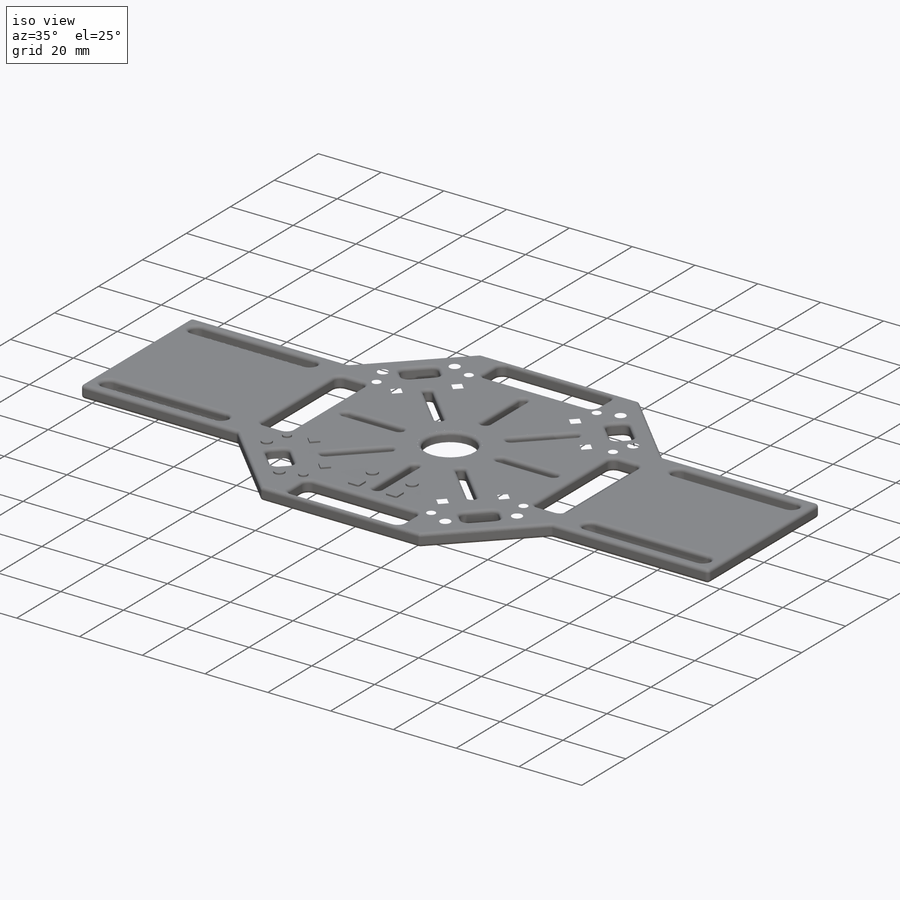
[diagram: iso view]
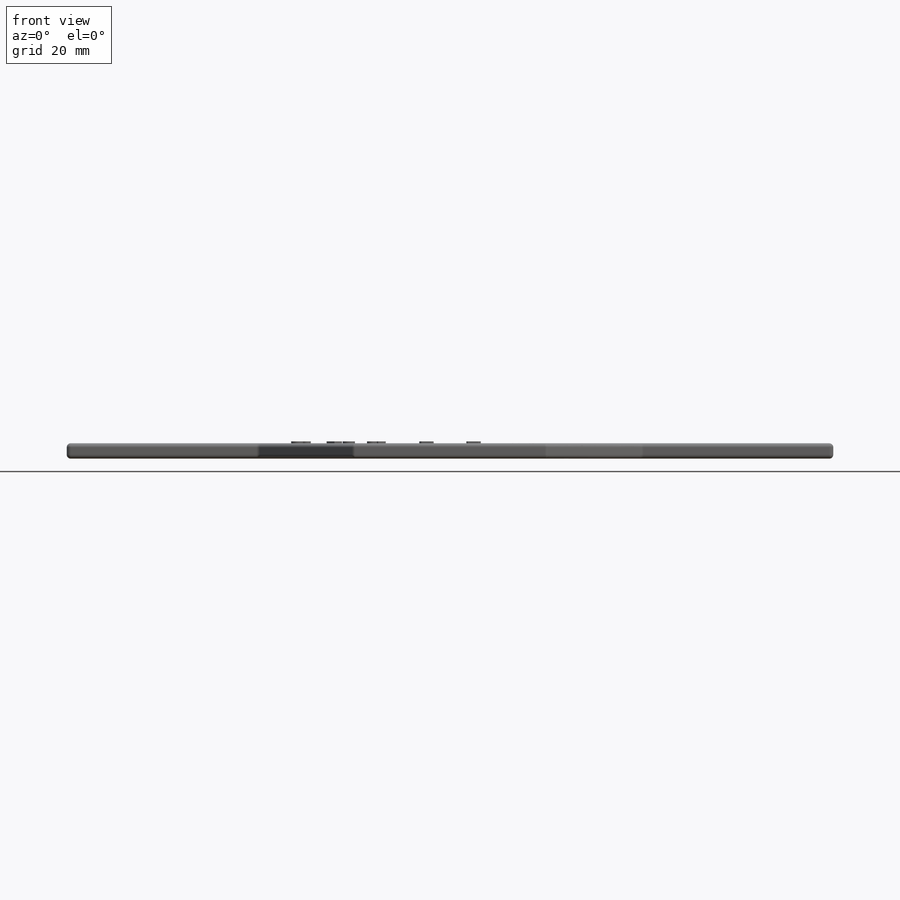
[diagram: front view]
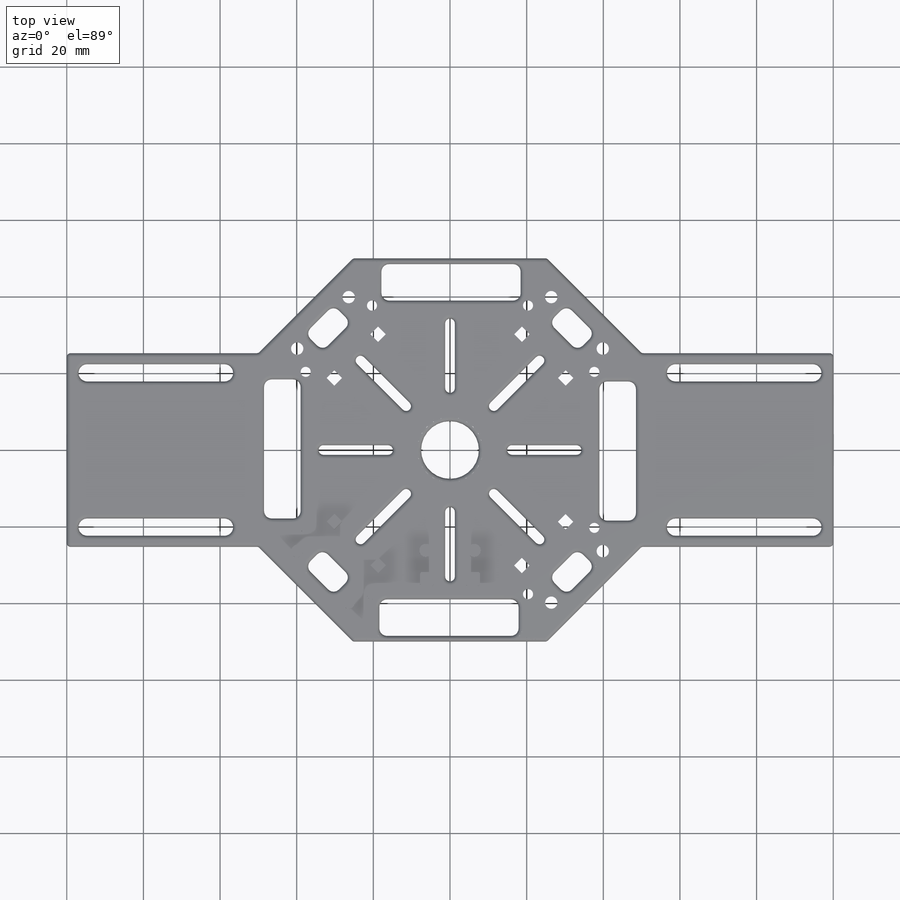
[diagram: top view]
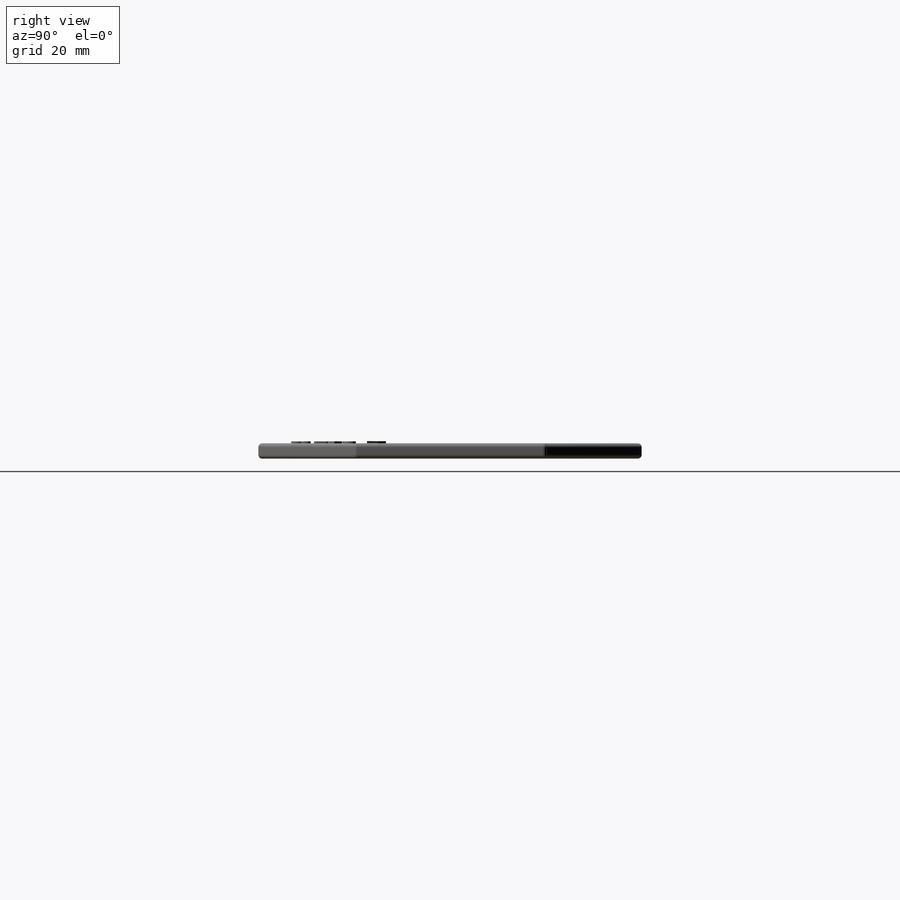
[diagram: right view]
SOLIDWORKS PART (.sldprt)
format: sldprt  version: not decoded by parser v0  size: 1,414,144 bytes
history: native  units: mm
features: sketch x3, extrude x3, material x1, fillet x1, pattern_circular x1 (+13 scaffold rows collapsed)
feature tree (22):
  scaffold x13  (default folders/planes/origin — collapsed)
  material  "A-Glass Fiber"
  sketch  "Sketch1"  dims[c1.D6=2.0mm c1.D8=2.0mm c1.D1=200.0mm c1.D2=100.0mm c1.D3=50.0mm c1.D4=~33.533443mm c2.D4=45.0deg c2.D5=35.0mm c2.D7=8.0 c2.D9=4.0]
  extrude  "Boss-Extrude1"  Depth=4mm
  fillet  "Fillet1"  Radius=1mm
  sketch  "Sketch2"  dims[D1=0.5mm D2=0.5mm]
  extrude  "Boss-Extrude2"  Depth=0.5mm
  sketch  "Sketch3"
  extrude  "Boss-Extrude3"  Depth=0.5mm
  pattern_circular  "CirPattern1"  Count=4 Angle=360deg
decode coverage: 7 of 8 modeling features carry decoded parameters
note: ~ marks probable driven/reference dimensions
note: suppression state not decoded; provenance and decode notes live in map.json
